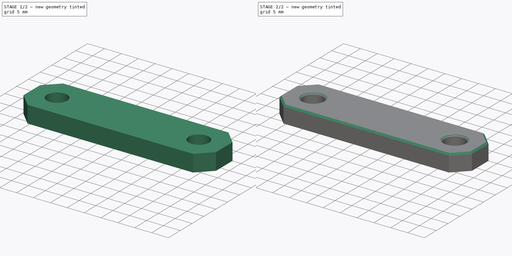
[diagram: build sequence overview — one tinted view per stage of 2, left to right]
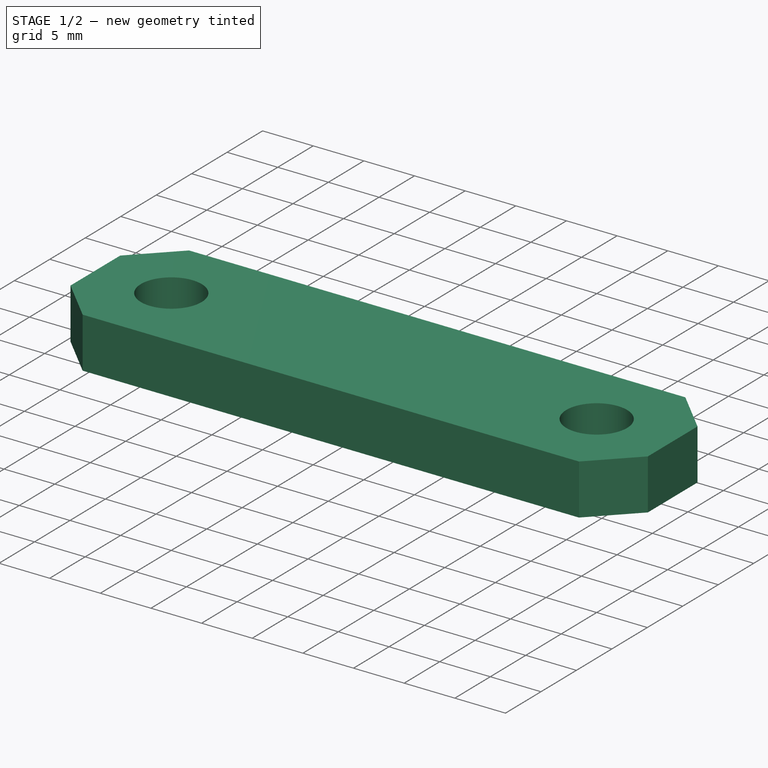
[diagram: stage 1 of 2 — iso view after this stage's code; geometry added in this stage tinted green]
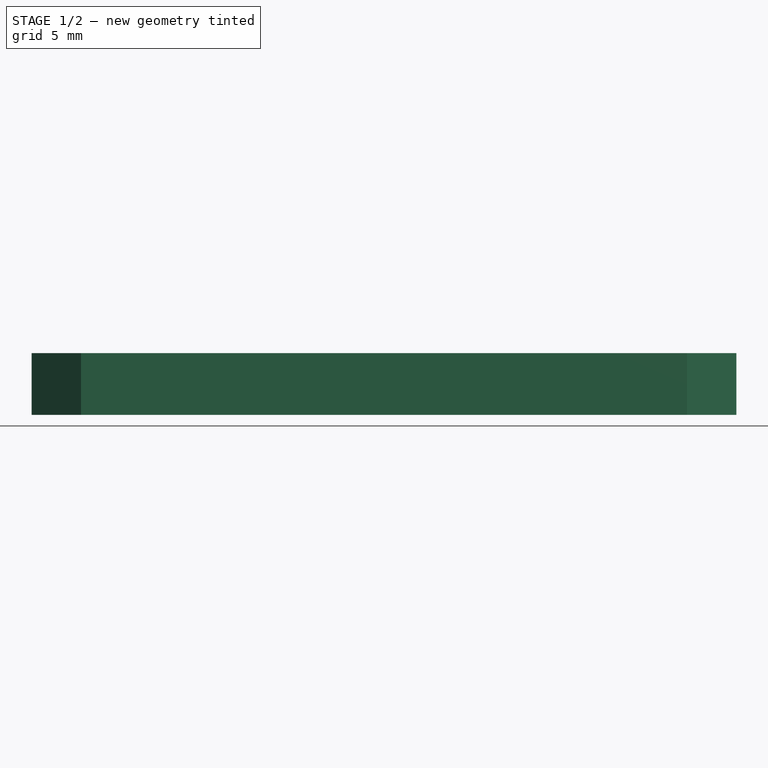
[diagram: stage 1 of 2 — front view after this stage's code; geometry added in this stage tinted green]
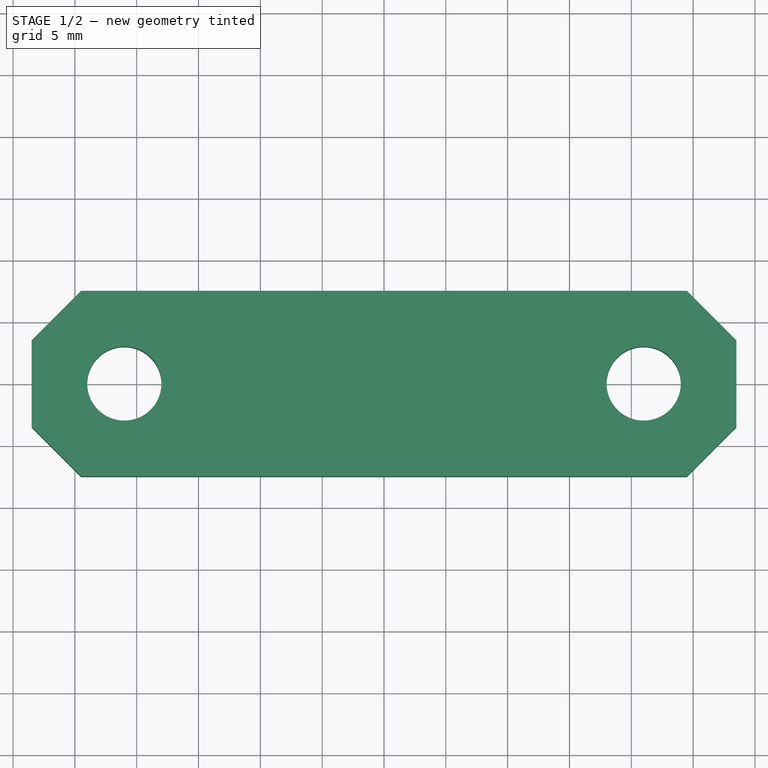
[diagram: stage 1 of 2 — top view after this stage's code; geometry added in this stage tinted green]
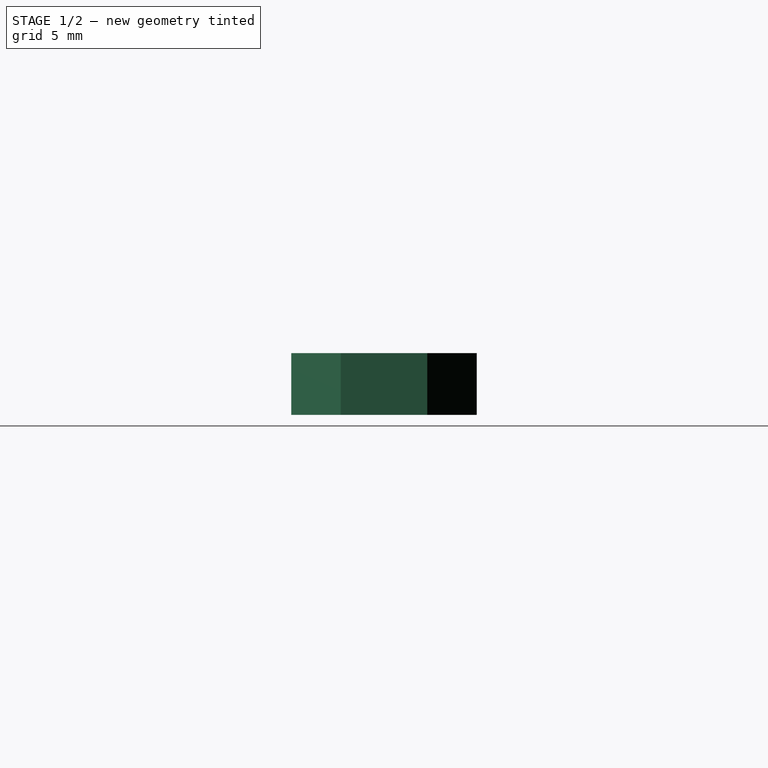
[diagram: stage 1 of 2 — right view after this stage's code; geometry added in this stage tinted green]
FCSTD DOCUMENT  (FreeCAD 1.0R39109 (Git))
Label: Spacer for KP08
License: All rights reserved
LicenseURL: https://en.wikipedia.org/wiki/All_rights_reserved
objects: Part::Feature×4, PartDesign::Chamfer×2, Sketcher::SketchObject×1, PartDesign::Pad×1, PartDesign::Body×1, App::Part×1
note: 16 computed .brp shape members not serialized (recipe doc carries the construction recipe); baked Part::Feature solids carry a one-line shape summary decoded from their .brp

FEATURE [Sketcher::SketchObject] Sketch
  ArcFitTolerance = 1e-06
  AttachmentSupport = -> [XY_Plane]
  FullyConstrained = true
  MakeInternals = false
  MapMode = 5
  sketch-geometry (6):
    g0: LineSegment StartX=-28.5 StartY=7.5 StartZ=0 EndX=-28.5 EndY=-7.5 EndZ=0
    g1: LineSegment StartX=-28.5 StartY=-7.5 StartZ=0 EndX=28.5 EndY=-7.5 EndZ=0
    g2: LineSegment StartX=28.5 StartY=-7.5 StartZ=0 EndX=28.5 EndY=7.5 EndZ=0
    g3: LineSegment StartX=28.5 StartY=7.5 StartZ=0 EndX=-28.5 EndY=7.5 EndZ=0
    g4: Circle CenterX=-21 CenterY=0 CenterZ=0 NormalX=0 NormalY=0 NormalZ=1 AngleXU=0 Radius=3
    g5: Circle CenterX=21 CenterY=0 CenterZ=0 NormalX=0 NormalY=0 NormalZ=1 AngleXU=0 Radius=3
  constraints (16):
    c: Coincident(g0,g1)
    c: Coincident(g1,g2)
    c: Coincident(g2,g3)
    c: Coincident(g3,g0)
    c: Vertical(g0)
    c: Vertical(g2)
    c: Horizontal(g1)
    c: Horizontal(g3)
    c: PointOnObject(g4,g-1)
    c: Diameter(g5) = 6
    c: Distance(g1) = 57
    c: Distance(g4,g5) = 42
    c: Equal(g4,g5)
    c: Distance(g2) = 15
    c: Symmetric(g0,g1,g-1)
    c: Symmetric(g4,g5,g-2)
FEATURE [PartDesign::Pad] Pad
  Direction = (0,0,1)
  Length = 5
  Length2 = 10
  Profile = -> Sketch
  ReferenceAxis = -> Sketch [N_Axis]
  Refine = true
  Reversed = true
  Suppressed = false
  Type = 0
FEATURE [PartDesign::Chamfer] Chamfer
  Angle = 45
  Base = -> Pad [Edge2,Edge5,Edge8,Edge1]
  BaseFeature = -> Pad
  ChamferType = 0
  FlipDirection = false
  Refine = true
  Size = 4
  Size2 = 1
  SupportTransform = false
  Suppressed = false
  UseAllEdges = false
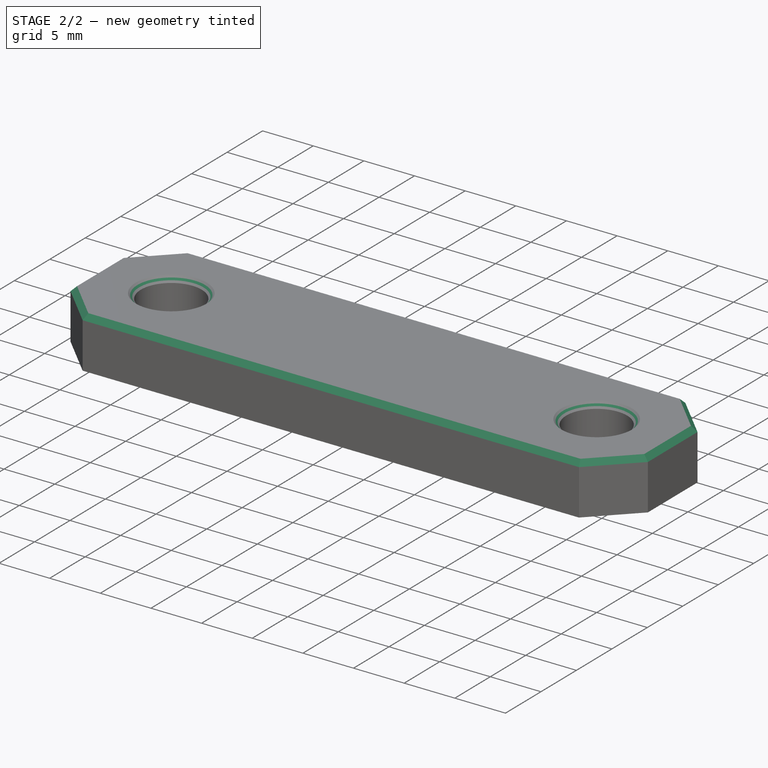
[diagram: stage 2 of 2 — iso view after this stage's code; geometry added in this stage tinted green]
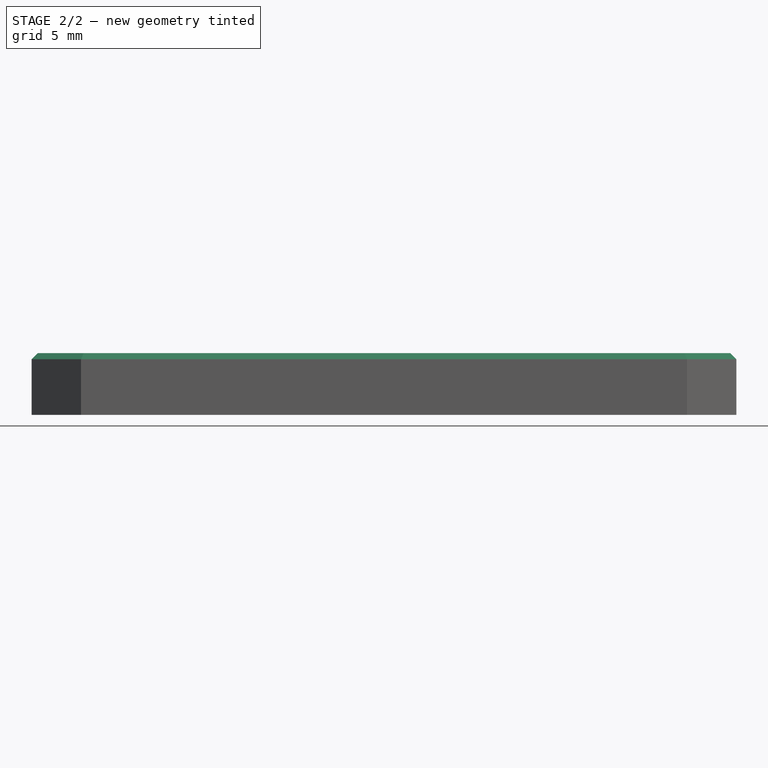
[diagram: stage 2 of 2 — front view after this stage's code; geometry added in this stage tinted green]
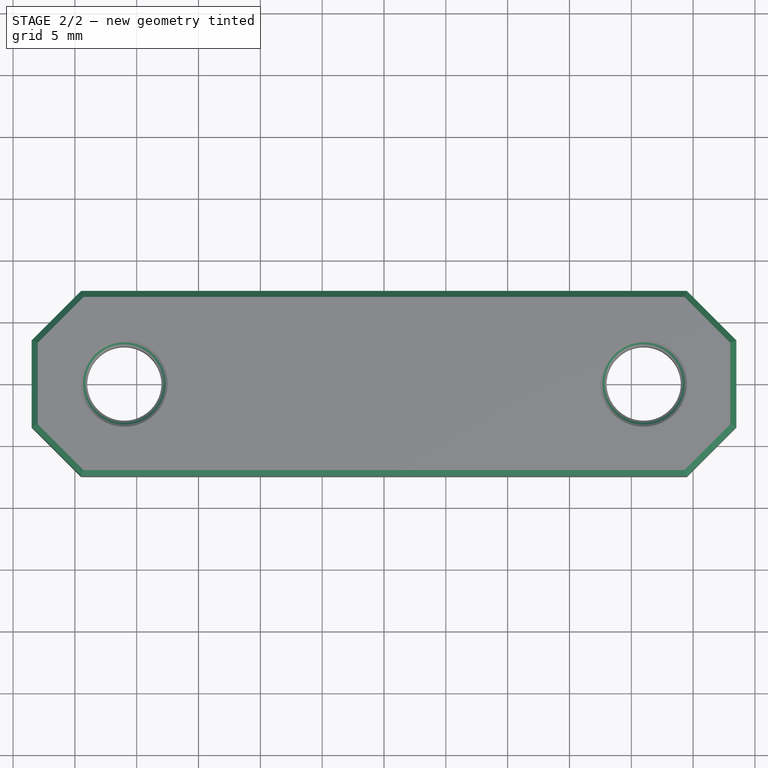
[diagram: stage 2 of 2 — top view after this stage's code; geometry added in this stage tinted green]
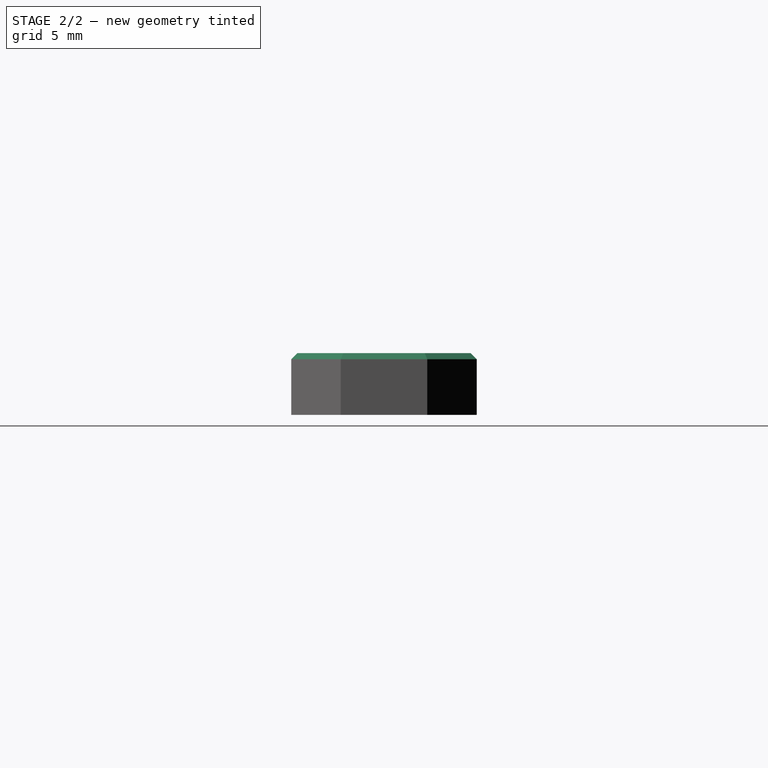
[diagram: stage 2 of 2 — right view after this stage's code; geometry added in this stage tinted green]
FEATURE [PartDesign::Chamfer] Chamfer001
  Angle = 45
  Base = -> Chamfer [Face2]
  BaseFeature = -> Chamfer
  ChamferType = 0
  FlipDirection = false
  Refine = true
  Size = 0.5
  Size2 = 1
  SupportTransform = false
  Suppressed = false
  UseAllEdges = false
FEATURE [PartDesign::Body] Body
  AllowCompound = false
  Group = -> [Sketch,Pad,Chamfer,Chamfer001]
  Origin = -> Origin
  Tip = -> Chamfer001
FEATURE [Part::Feature] Part__Feature  label="KP08 SUPPORT BEARING-Edited v2"
  shape: bbox 55.01 x 29.91 x 13.77 mm, 179 faces (baked)
FEATURE [Part::Feature] Part__Feature001  label="KP08 SUPPORT BEARING-Edited v003"
  shape: bbox 20 x 20 x 6 mm, 6 faces (baked)
FEATURE [Part::Feature] Part__Feature002  label="KP08 SUPPORT BEARING-Edited v004"
  shape: bbox 12 x 12 x 8 mm, 8 faces (baked)
FEATURE [Part::Feature] Part__Feature003  label="KP08 SUPPORT BEARING-Edited v005"
  shape: bbox 21.46 x 21.46 x 6 mm, 4 faces (baked)
FEATURE [App::Part] KP08_SUPPORT_BEARING_Edited_v2  label="KP08 SUPPORT BEARING-Edited v006"
  Group = -> [Part__Feature,Part__Feature001,Part__Feature002,Part__Feature003]
  Origin = -> Origin001
  Placement = pos=(0,-3.3e-15,15) rot=(1,0,0;1.5708rad)
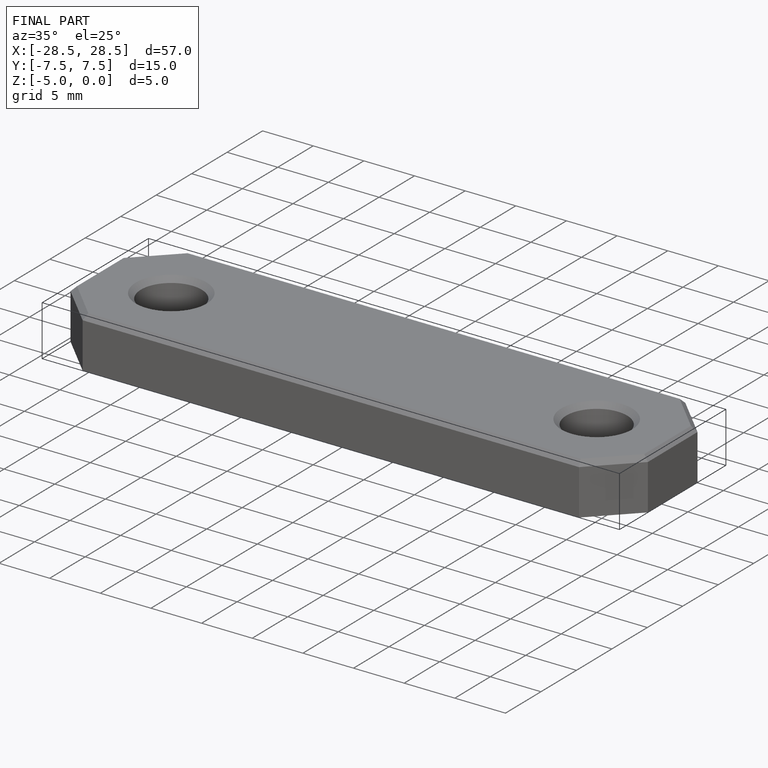
[diagram: finished part — iso view with bounding-box wireframe]
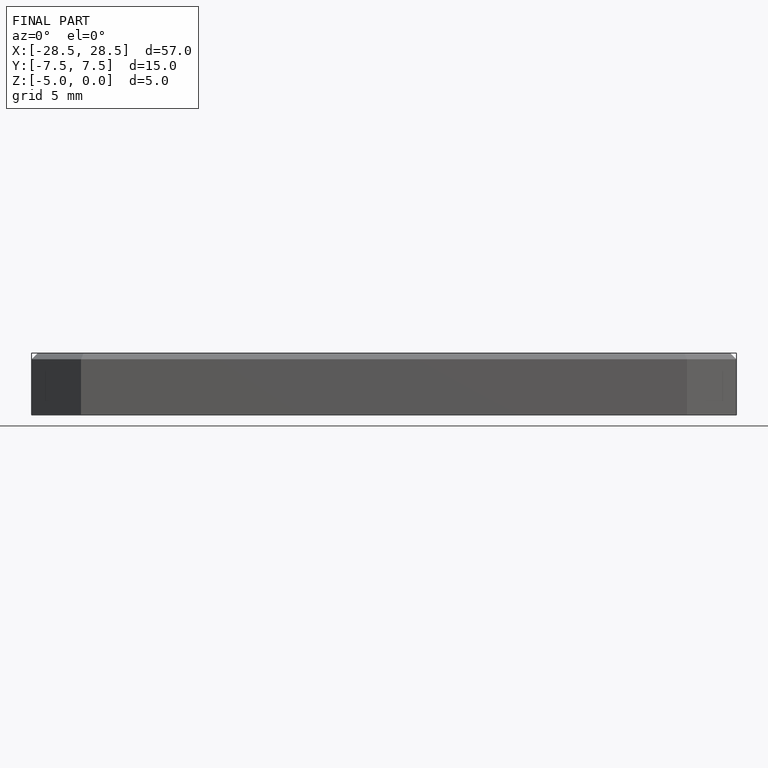
[diagram: finished part — front view with bounding-box wireframe]
